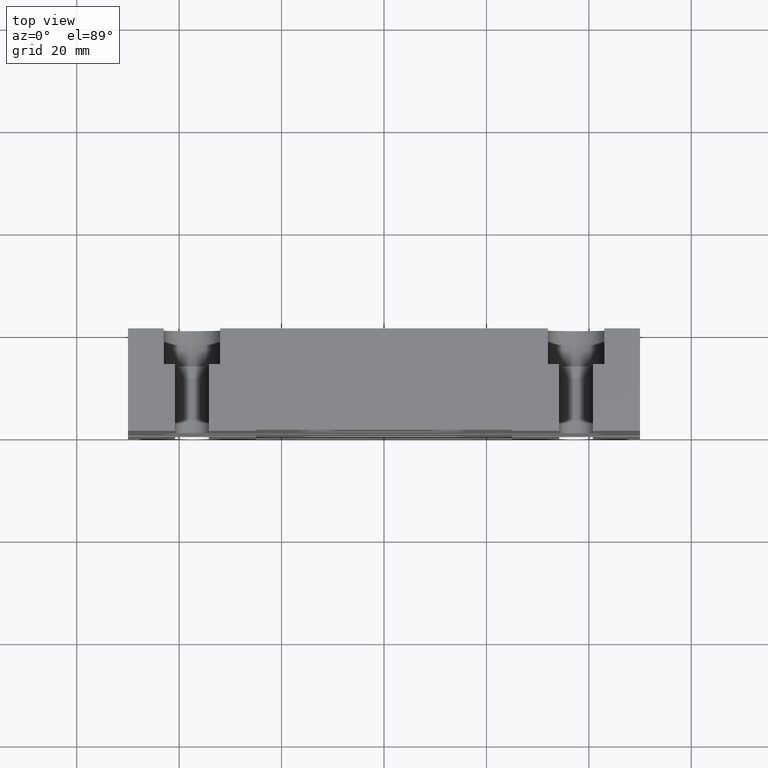
[diagram: clean part render]
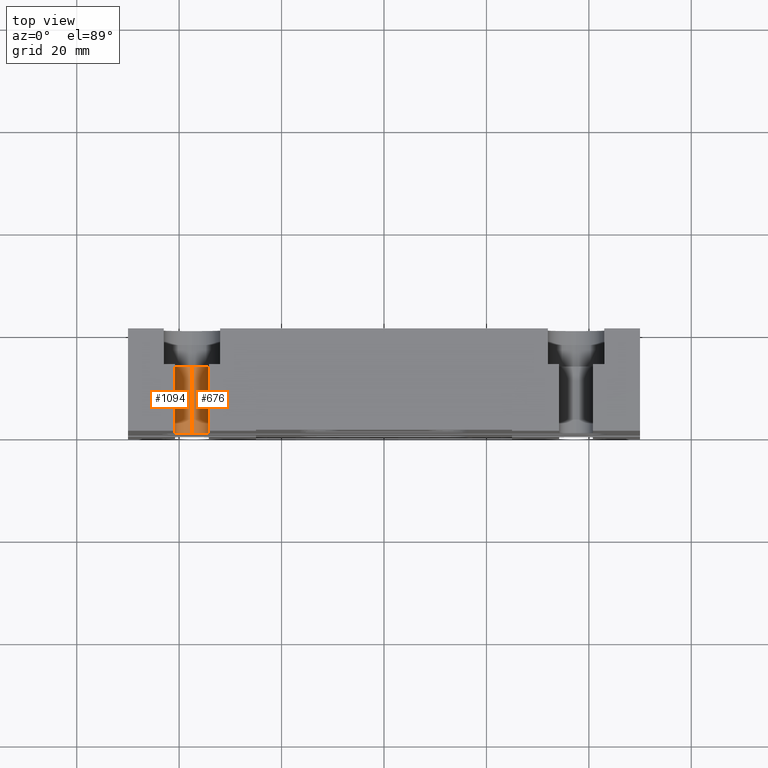
[diagram: same view with one multi-face feature highlighted, each face labeled with its STEP entity id]
A machine part, top view. The highlighted faces form ONE feature: a constant-radius fillet chain: 2 tangent blend faces with common blend radius 3.3 mm. The faces share edges in the B-rep.
Their STEP definitions:
[1] entity #676 (Cylinder):
#307 = ORIENTED_EDGE ( 'NONE', *, *, #3086, .F. ) ;
#624 = CARTESIAN_POINT ( 'NONE',  ( -37.49999999999999300, 13.00000000000000200, 24.50000000000001400 ) ) ;
#655 = DIRECTION ( 'NONE',  ( 0.0000000000000000000, 0.0000000000000000000, -1.000000000000000000 ) ) ;
#676 = ADVANCED_FACE ( 'NONE', ( #4884 ), #5166, .F. ) ;
#686 = CARTESIAN_POINT ( 'NONE',  ( -37.49999999999999300, 20.00000000000000000, 24.50000000000001400 ) ) ;
#754 = VERTEX_POINT ( 'NONE', #3766 ) ;
#836 = CARTESIAN_POINT ( 'NONE',  ( -34.19999999999999600, 6.689756658854145300E-031, 24.50000000000001800 ) ) ;
#861 = CARTESIAN_POINT ( 'NONE',  ( -37.49999999999999300, 6.689756658854147000E-031, 24.50000000000001400 ) ) ;
#922 = EDGE_LOOP ( 'NONE', ( #2529, #307, #4845, #939 ) ) ;
#939 = ORIENTED_EDGE ( 'NONE', *, *, #2558, .T. ) ;
#1278 = LINE ( 'NONE', #836, #1985 ) ;
#1745 = VERTEX_POINT ( 'NONE', #3983 ) ;
#1985 = VECTOR ( 'NONE', #2259, 1000.000000000000000 ) ;
#2023 = CIRCLE ( 'NONE', #2850, 3.299999999999994000 ) ;
#2131 = AXIS2_PLACEMENT_3D ( 'NONE', #624, #2910, #655 ) ;
#2146 = DIRECTION ( 'NONE',  ( 0.0000000000000000000, -2.730512921981285500E-032, -1.000000000000000000 ) ) ;
#2259 = DIRECTION ( 'NONE',  ( 2.218897729836139900E-047, 1.000000000000000000, -2.965575351820868600E-032 ) ) ;
#2529 = ORIENTED_EDGE ( 'NONE', *, *, #5273, .F. ) ;
#2558 = EDGE_CURVE ( 'NONE', #4082, #1745, #2960, .T. ) ;
#2850 = AXIS2_PLACEMENT_3D ( 'NONE', #861, #5736, #2146 ) ;
#2910 = DIRECTION ( 'NONE',  ( 2.218897729836139900E-047, 1.000000000000000000, -2.965575351820868600E-032 ) ) ;
#2960 = CIRCLE ( 'NONE', #2131, 3.299999999999997200 ) ;
#3086 = EDGE_CURVE ( 'NONE', #754, #3088, #2023, .T. ) ;
#3088 = VERTEX_POINT ( 'NONE', #4830 ) ;
#3119 = LINE ( 'NONE', #3954, #4299 ) ;
#3746 = DIRECTION ( 'NONE',  ( 0.0000000000000000000, 0.0000000000000000000, -1.000000000000000000 ) ) ;
#3766 = CARTESIAN_POINT ( 'NONE',  ( -34.19999999999999600, 6.689756658854145300E-031, 24.50000000000001800 ) ) ;
#3798 = DIRECTION ( 'NONE',  ( 2.218897729836139900E-047, 1.000000000000000000, -2.965575351820868600E-032 ) ) ;
#3954 = CARTESIAN_POINT ( 'NONE',  ( -37.49999999999999300, 20.00000000000000000, 21.20000000000001700 ) ) ;
#3983 = CARTESIAN_POINT ( 'NONE',  ( -37.49999999999999300, 13.00000000000000200, 21.20000000000001700 ) ) ;
#4061 = CARTESIAN_POINT ( 'NONE',  ( -34.19999999999999600, 13.00000000000000200, 24.50000000000001800 ) ) ;
#4082 = VERTEX_POINT ( 'NONE', #4061 ) ;
#4299 = VECTOR ( 'NONE', #4439, 1000.000000000000000 ) ;
#4439 = DIRECTION ( 'NONE',  ( 2.218897729836139900E-047, 1.000000000000000000, -2.965575351820868600E-032 ) ) ;
#4830 = CARTESIAN_POINT ( 'NONE',  ( -37.49999999999999300, 5.711116792753262100E-031, 21.20000000000002100 ) ) ;
#4845 = ORIENTED_EDGE ( 'NONE', *, *, #5682, .T. ) ;
#4884 = FACE_OUTER_BOUND ( 'NONE', #922, .T. ) ;
#5145 = AXIS2_PLACEMENT_3D ( 'NONE', #686, #3798, #3746 ) ;
#5166 = CYLINDRICAL_SURFACE ( 'NONE', #5145, 3.299999999999997200 ) ;
#5273 = EDGE_CURVE ( 'NONE', #3088, #1745, #3119, .T. ) ;
#5682 = EDGE_CURVE ( 'NONE', #754, #4082, #1278, .T. ) ;
#5736 = DIRECTION ( 'NONE',  ( 2.218897729836139900E-047, 1.000000000000000000, -2.965575351820868600E-032 ) ) ;
[2] entity #1094 (Cylinder):
#92 = AXIS2_PLACEMENT_3D ( 'NONE', #5298, #2633, #3089 ) ;
#535 = DIRECTION ( 'NONE',  ( 2.218897729836139900E-047, 1.000000000000000000, -2.965575351820868600E-032 ) ) ;
#589 = ORIENTED_EDGE ( 'NONE', *, *, #994, .F. ) ;
#917 = EDGE_CURVE ( 'NONE', #3088, #2464, #1625, .T. ) ;
#994 = EDGE_CURVE ( 'NONE', #2464, #3557, #2546, .T. ) ;
#1094 = ADVANCED_FACE ( 'NONE', ( #5737 ), #4634, .F. ) ;
#1250 = CARTESIAN_POINT ( 'NONE',  ( -40.79999999999999000, 13.00000000000000200, 24.50000000000001800 ) ) ;
#1332 = CIRCLE ( 'NONE', #2883, 3.299999999999997200 ) ;
#1453 = DIRECTION ( 'NONE',  ( 0.0000000000000000000, 0.0000000000000000000, -1.000000000000000000 ) ) ;
#1625 = CIRCLE ( 'NONE', #92, 3.299999999999994000 ) ;
#1745 = VERTEX_POINT ( 'NONE', #3983 ) ;
#1900 = CARTESIAN_POINT ( 'NONE',  ( -40.79999999999999000, 6.689756658854145300E-031, 24.50000000000001800 ) ) ;
#2038 = EDGE_LOOP ( 'NONE', ( #3552, #2121, #4899, #589 ) ) ;
#2121 = ORIENTED_EDGE ( 'NONE', *, *, #5273, .T. ) ;
#2165 = DIRECTION ( 'NONE',  ( 2.218897729836139900E-047, 1.000000000000000000, -2.965575351820868600E-032 ) ) ;
#2447 = EDGE_CURVE ( 'NONE', #1745, #3557, #1332, .T. ) ;
#2464 = VERTEX_POINT ( 'NONE', #1900 ) ;
#2546 = LINE ( 'NONE', #5242, #3748 ) ;
#2633 = DIRECTION ( 'NONE',  ( 2.218897729836139900E-047, 1.000000000000000000, -2.965575351820868600E-032 ) ) ;
#2883 = AXIS2_PLACEMENT_3D ( 'NONE', #4129, #535, #1453 ) ;
#3088 = VERTEX_POINT ( 'NONE', #4830 ) ;
#3089 = DIRECTION ( 'NONE',  ( 0.0000000000000000000, -2.730512921981285500E-032, -1.000000000000000000 ) ) ;
#3119 = LINE ( 'NONE', #3954, #4299 ) ;
#3552 = ORIENTED_EDGE ( 'NONE', *, *, #917, .F. ) ;
#3557 = VERTEX_POINT ( 'NONE', #1250 ) ;
#3748 = VECTOR ( 'NONE', #2165, 1000.000000000000000 ) ;
#3954 = CARTESIAN_POINT ( 'NONE',  ( -37.49999999999999300, 20.00000000000000000, 21.20000000000001700 ) ) ;
#3983 = CARTESIAN_POINT ( 'NONE',  ( -37.49999999999999300, 13.00000000000000200, 21.20000000000001700 ) ) ;
#4129 = CARTESIAN_POINT ( 'NONE',  ( -37.49999999999999300, 13.00000000000000200, 24.50000000000001400 ) ) ;
#4299 = VECTOR ( 'NONE', #4439, 1000.000000000000000 ) ;
#4439 = DIRECTION ( 'NONE',  ( 2.218897729836139900E-047, 1.000000000000000000, -2.965575351820868600E-032 ) ) ;
#4511 = DIRECTION ( 'NONE',  ( 0.0000000000000000000, 0.0000000000000000000, -1.000000000000000000 ) ) ;
#4634 = CYLINDRICAL_SURFACE ( 'NONE', #5577, 3.299999999999997200 ) ;
#4830 = CARTESIAN_POINT ( 'NONE',  ( -37.49999999999999300, 5.711116792753262100E-031, 21.20000000000002100 ) ) ;
#4899 = ORIENTED_EDGE ( 'NONE', *, *, #2447, .T. ) ;
#4916 = DIRECTION ( 'NONE',  ( 2.218897729836139900E-047, 1.000000000000000000, -2.965575351820868600E-032 ) ) ;
#4939 = CARTESIAN_POINT ( 'NONE',  ( -37.49999999999999300, 20.00000000000000000, 24.50000000000001400 ) ) ;
#5242 = CARTESIAN_POINT ( 'NONE',  ( -40.79999999999999000, 6.689756658854145300E-031, 24.50000000000001800 ) ) ;
#5273 = EDGE_CURVE ( 'NONE', #3088, #1745, #3119, .T. ) ;
#5298 = CARTESIAN_POINT ( 'NONE',  ( -37.49999999999999300, 6.689756658854147000E-031, 24.50000000000001400 ) ) ;
#5577 = AXIS2_PLACEMENT_3D ( 'NONE', #4939, #4916, #4511 ) ;
#5737 = FACE_OUTER_BOUND ( 'NONE', #2038, .T. ) ;